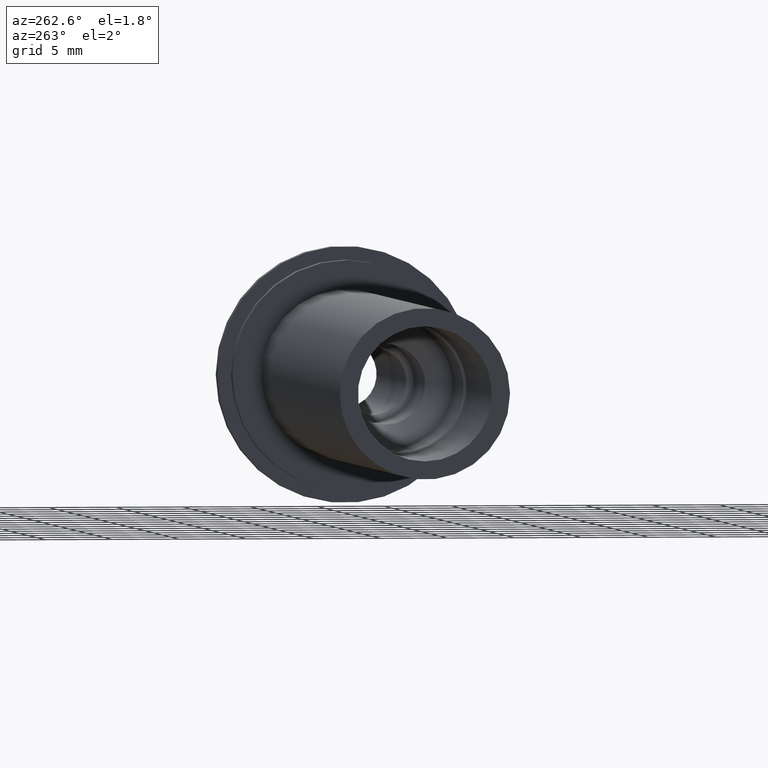
[diagram: clean part render]
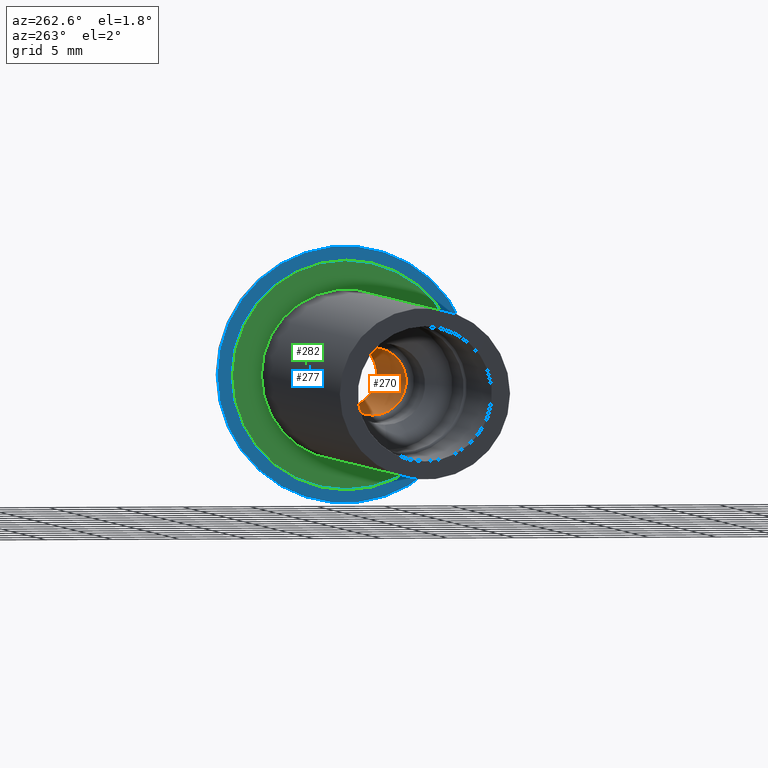
[diagram: same view with three faces highlighted in distinct colors, each labeled with its STEP entity id]
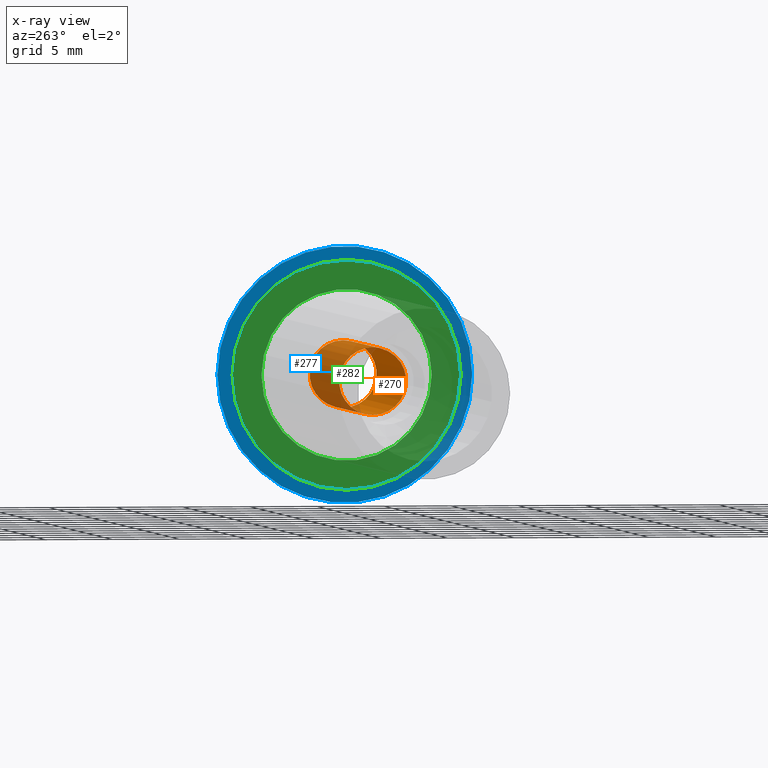
[diagram: x-ray of the same camera — body ghosted, the three highlighted faces saturated]
A machine part, auxiliary view with three faces highlighted in distinct colors.
The next image is the same camera in x-ray (body ghosted, the three faces saturated) — at least one of them is partly hidden behind the body in this view.
Their STEP definitions:

[orange] entity #270 — the highlighted cylindrical surface (bore or boss wall) has radius 2.5 mm, axis along (1, 0, 0).
#102=FACE_OUTER_BOUND('',#116,.T.);
#116=EDGE_LOOP('',(#213,#214,#215,#216,#217));
#134=LINE('',#462,#144);
#144=VECTOR('',#359,2.5);
#154=CIRCLE('',#308,2.5);
#155=CIRCLE('',#309,2.5);
#156=CIRCLE('',#310,2.5);
#173=VERTEX_POINT('',#459);
#174=VERTEX_POINT('',#461);
#175=VERTEX_POINT('',#463);
#188=EDGE_CURVE('',#173,#173,#154,.T.);
#189=EDGE_CURVE('',#173,#174,#134,.T.);
#190=EDGE_CURVE('',#175,#174,#155,.T.);
#191=EDGE_CURVE('',#174,#175,#156,.T.);
#213=ORIENTED_EDGE('',*,*,#188,.F.);
#214=ORIENTED_EDGE('',*,*,#189,.T.);
#215=ORIENTED_EDGE('',*,*,#190,.F.);
#216=ORIENTED_EDGE('',*,*,#191,.F.);
#217=ORIENTED_EDGE('',*,*,#189,.F.);
#263=CYLINDRICAL_SURFACE('',#307,2.5);
#270=ADVANCED_FACE('',(#102),#263,.F.);
#307=AXIS2_PLACEMENT_3D('',#458,#355,#356);
#308=AXIS2_PLACEMENT_3D('',#460,#357,#358);
#309=AXIS2_PLACEMENT_3D('',#464,#360,#361);
#310=AXIS2_PLACEMENT_3D('',#465,#362,#363);
#355=DIRECTION('center_axis',(1.,0.,0.));
#356=DIRECTION('ref_axis',(0.,0.,-1.));
#357=DIRECTION('center_axis',(-1.,0.,0.));
#358=DIRECTION('ref_axis',(0.,0.,-1.));
#359=DIRECTION('',(-1.,0.,0.));
#360=DIRECTION('center_axis',(1.,0.,0.));
#361=DIRECTION('ref_axis',(0.,0.,-1.));
#362=DIRECTION('center_axis',(1.,0.,0.));
#363=DIRECTION('ref_axis',(0.,0.,-1.));
#458=CARTESIAN_POINT('Origin',(-54.1387107345567,0.,0.));
#459=CARTESIAN_POINT('',(1.77635683940025E-14,-3.06161699786838E-16,2.5));
#460=CARTESIAN_POINT('Origin',(1.77635683940025E-14,0.,0.));
#461=CARTESIAN_POINT('',(-17.,-3.06161699786838E-16,2.5));
#462=CARTESIAN_POINT('',(-54.1387107345567,-3.06161699786838E-16,2.5));
#463=CARTESIAN_POINT('',(-17.,-3.06161699786838E-16,-2.5));
#464=CARTESIAN_POINT('Origin',(-17.,0.,0.));
#465=CARTESIAN_POINT('Origin',(-17.,0.,0.));

[blue] entity #277 — the highlighted planar face has unit normal (-1, 0, 0).
#91=FACE_BOUND('',#124,.T.);
#95=PLANE('',#323);
#109=FACE_OUTER_BOUND('',#123,.T.);
#123=EDGE_LOOP('',(#243));
#124=EDGE_LOOP('',(#244));
#163=CIRCLE('',#324,9.5);
#164=CIRCLE('',#325,8.5);
#182=VERTEX_POINT('',#491);
#183=VERTEX_POINT('',#493);
#204=EDGE_CURVE('',#182,#182,#163,.T.);
#205=EDGE_CURVE('',#183,#183,#164,.T.);
#243=ORIENTED_EDGE('',*,*,#204,.F.);
#244=ORIENTED_EDGE('',*,*,#205,.T.);
#277=ADVANCED_FACE('',(#109,#91),#95,.T.);
#323=AXIS2_PLACEMENT_3D('',#490,#394,#395);
#324=AXIS2_PLACEMENT_3D('',#492,#396,#397);
#325=AXIS2_PLACEMENT_3D('',#494,#398,#399);
#394=DIRECTION('center_axis',(-1.,0.,0.));
#395=DIRECTION('ref_axis',(0.,0.,1.));
#396=DIRECTION('center_axis',(1.,0.,0.));
#397=DIRECTION('ref_axis',(0.,0.,-1.));
#398=DIRECTION('center_axis',(1.,0.,0.));
#399=DIRECTION('ref_axis',(0.,0.,-1.));
#490=CARTESIAN_POINT('Origin',(-0.999999999999994,9.5,0.));
#491=CARTESIAN_POINT('',(-0.999999999999994,-9.5,-1.16341445918999E-15));
#492=CARTESIAN_POINT('Origin',(-0.999999999999994,0.,0.));
#493=CARTESIAN_POINT('',(-0.999999999999994,-8.5,-1.04094977927525E-15));
#494=CARTESIAN_POINT('Origin',(-0.999999999999994,0.,0.));

[green] entity #282 — the highlighted planar face has unit normal (-1, 0, 0).
#94=FACE_BOUND('',#132,.T.);
#98=PLANE('',#333);
#114=FACE_OUTER_BOUND('',#131,.T.);
#131=EDGE_LOOP('',(#257));
#132=EDGE_LOOP('',(#258));
#167=CIRCLE('',#332,6.35);
#168=CIRCLE('',#334,8.5);
#186=VERTEX_POINT('',#504);
#187=VERTEX_POINT('',#508);
#209=EDGE_CURVE('',#186,#186,#167,.T.);
#211=EDGE_CURVE('',#187,#187,#168,.T.);
#257=ORIENTED_EDGE('',*,*,#211,.F.);
#258=ORIENTED_EDGE('',*,*,#209,.T.);
#282=ADVANCED_FACE('',(#114,#94),#98,.T.);
#332=AXIS2_PLACEMENT_3D('',#505,#413,#414);
#333=AXIS2_PLACEMENT_3D('',#507,#416,#417);
#334=AXIS2_PLACEMENT_3D('',#509,#418,#419);
#413=DIRECTION('center_axis',(1.,0.,0.));
#414=DIRECTION('ref_axis',(0.,0.,-1.));
#416=DIRECTION('center_axis',(-1.,0.,0.));
#417=DIRECTION('ref_axis',(0.,0.,1.));
#418=DIRECTION('center_axis',(1.,0.,0.));
#419=DIRECTION('ref_axis',(0.,0.,-1.));
#504=CARTESIAN_POINT('',(-2.,-6.35,-7.7765071745857E-16));
#505=CARTESIAN_POINT('Origin',(-2.,0.,0.));
#507=CARTESIAN_POINT('Origin',(-2.,8.5,0.));
#508=CARTESIAN_POINT('',(-2.,-8.5,-1.04094977927525E-15));
#509=CARTESIAN_POINT('Origin',(-2.,0.,0.));